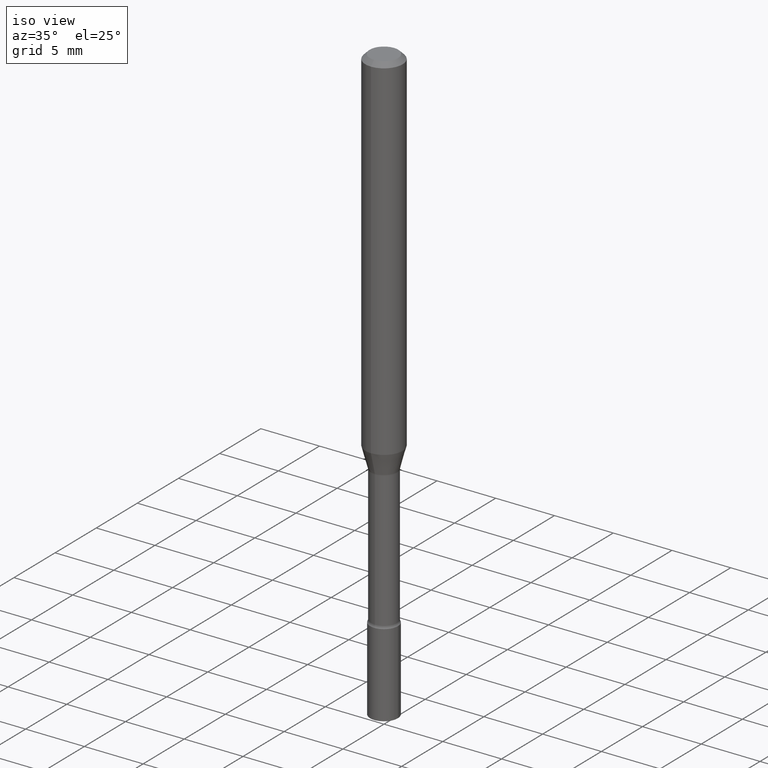
[diagram: clean part render]
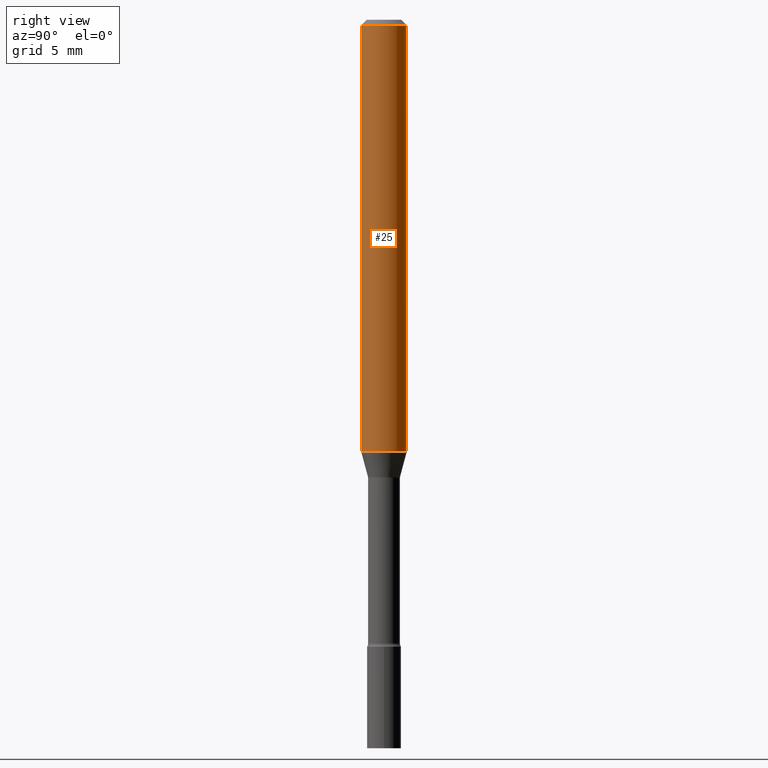
[diagram: tour spotlight — one face highlighted and labeled with its STEP entity id]
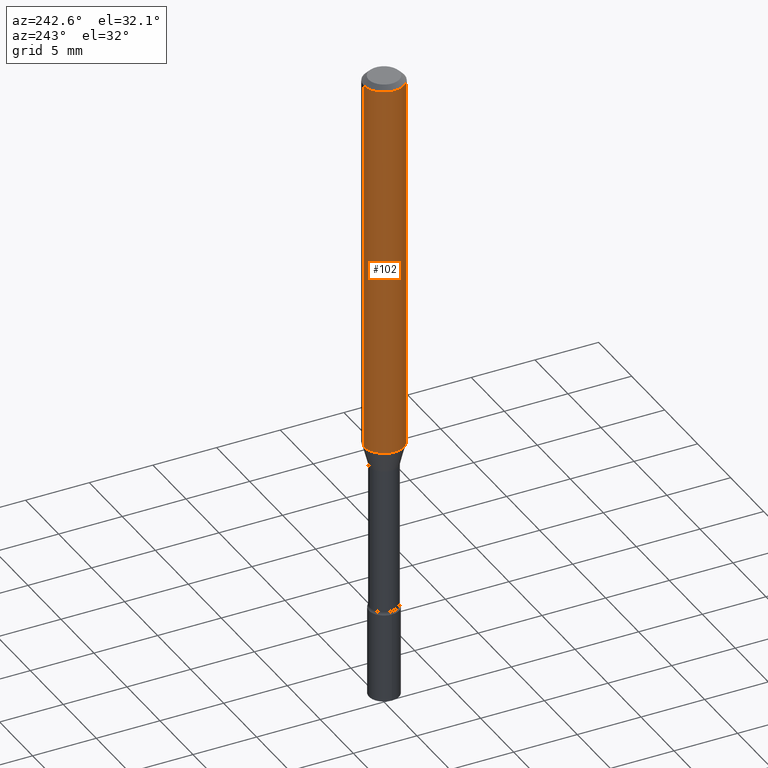
[diagram: tour spotlight — one face highlighted and labeled with its STEP entity id]
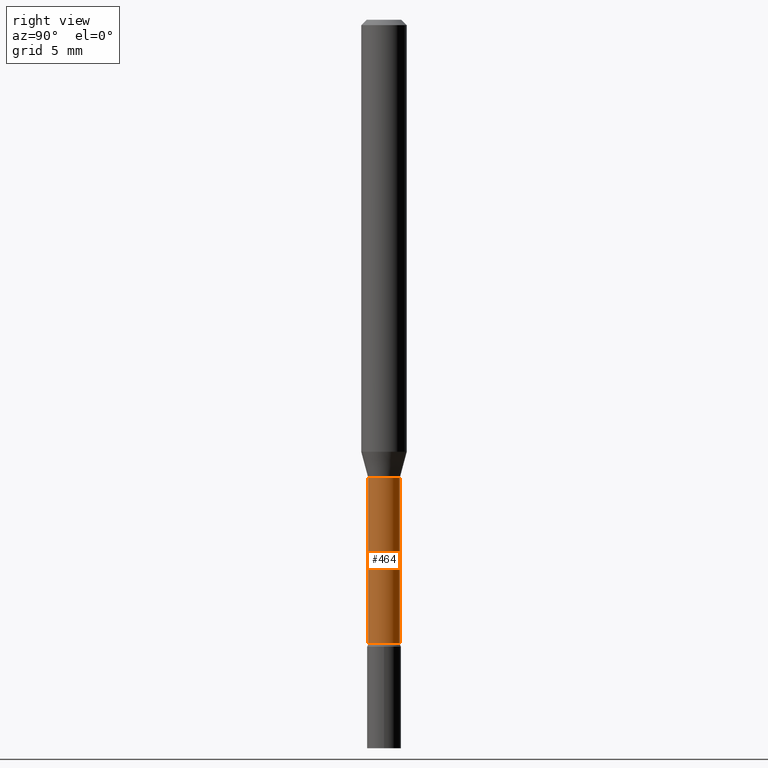
[diagram: tour spotlight — one face highlighted and labeled with its STEP entity id]
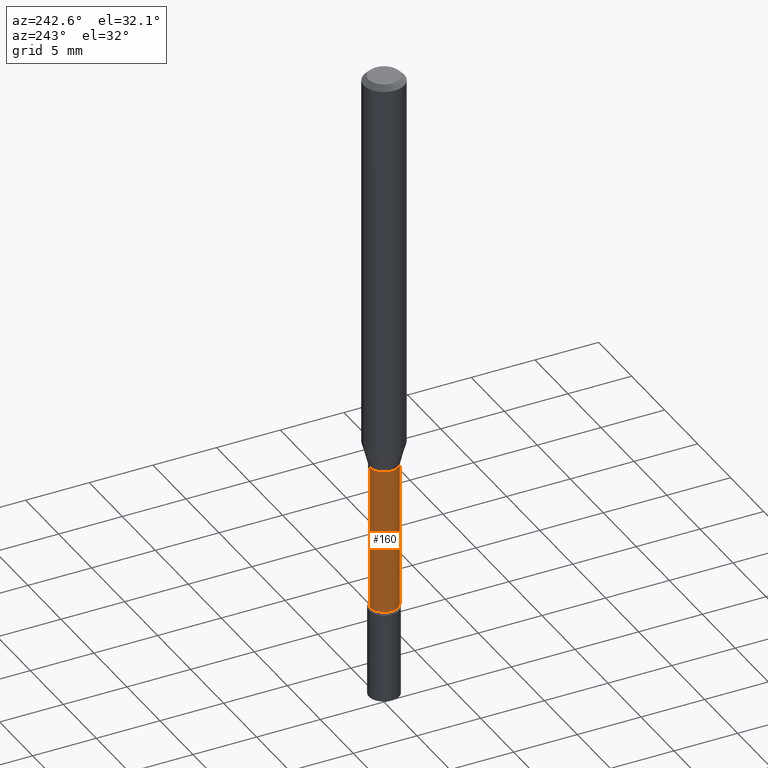
[diagram: tour spotlight — one face highlighted and labeled with its STEP entity id]
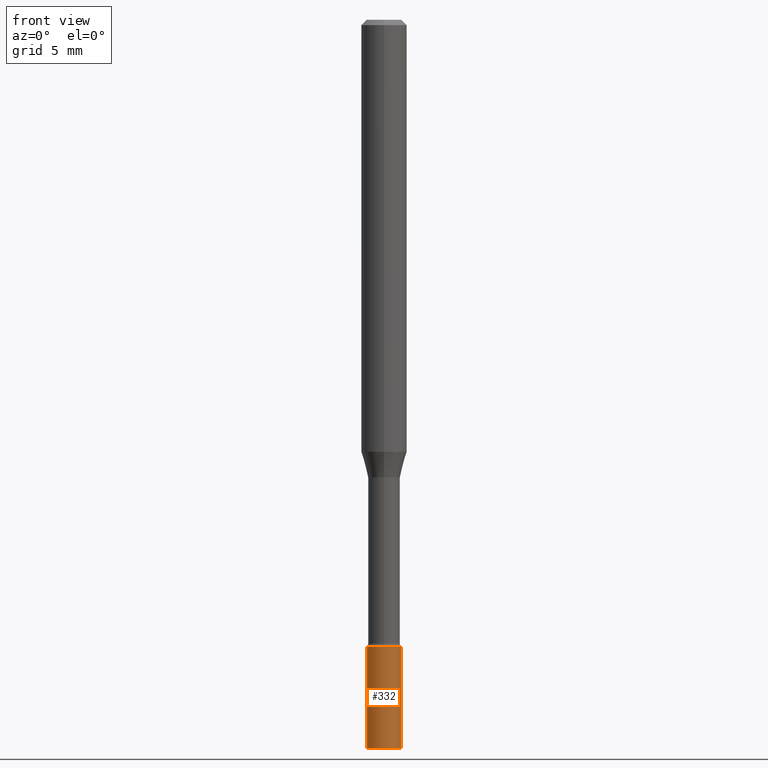
[diagram: tour spotlight — one face highlighted and labeled with its STEP entity id]
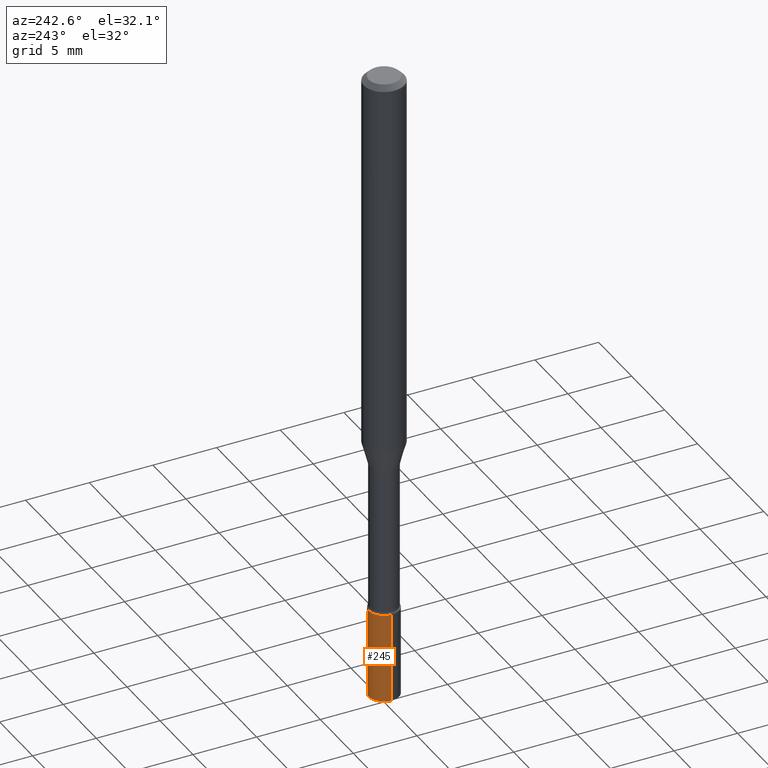
[diagram: tour spotlight — one face highlighted and labeled with its STEP entity id]
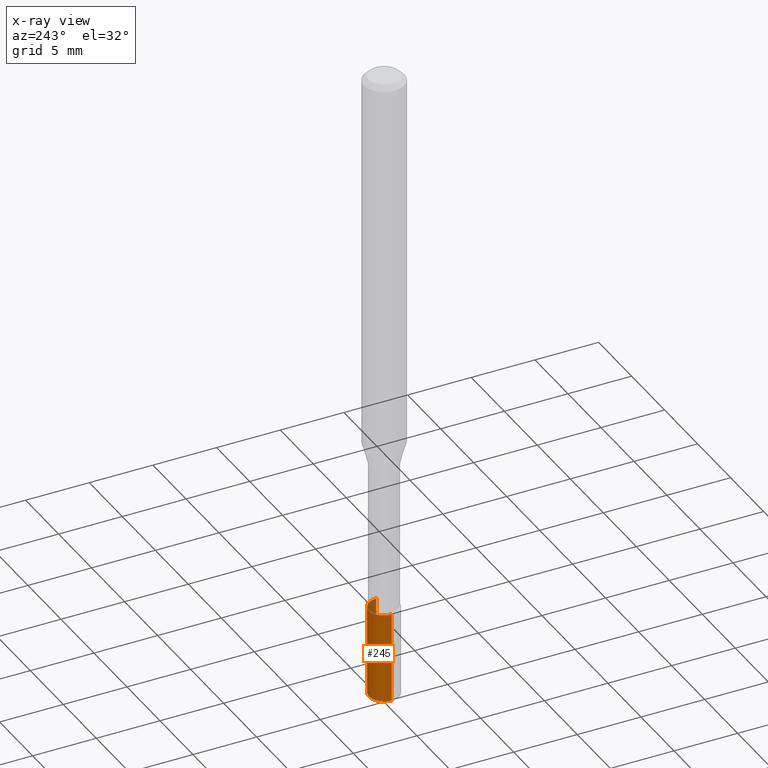
[diagram: x-ray of the same camera — body ghosted, this tour face saturated]
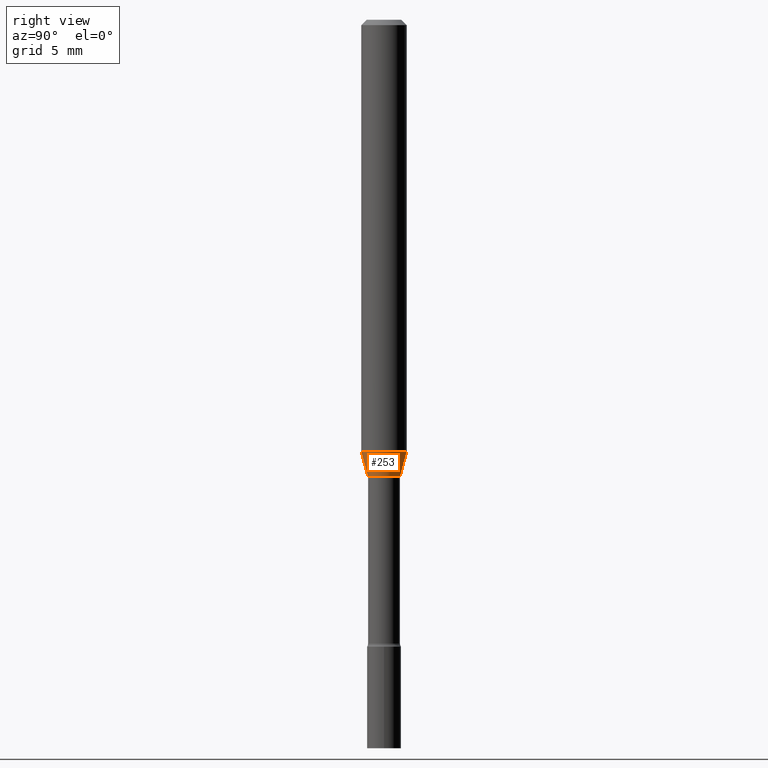
[diagram: tour spotlight — one face highlighted and labeled with its STEP entity id]
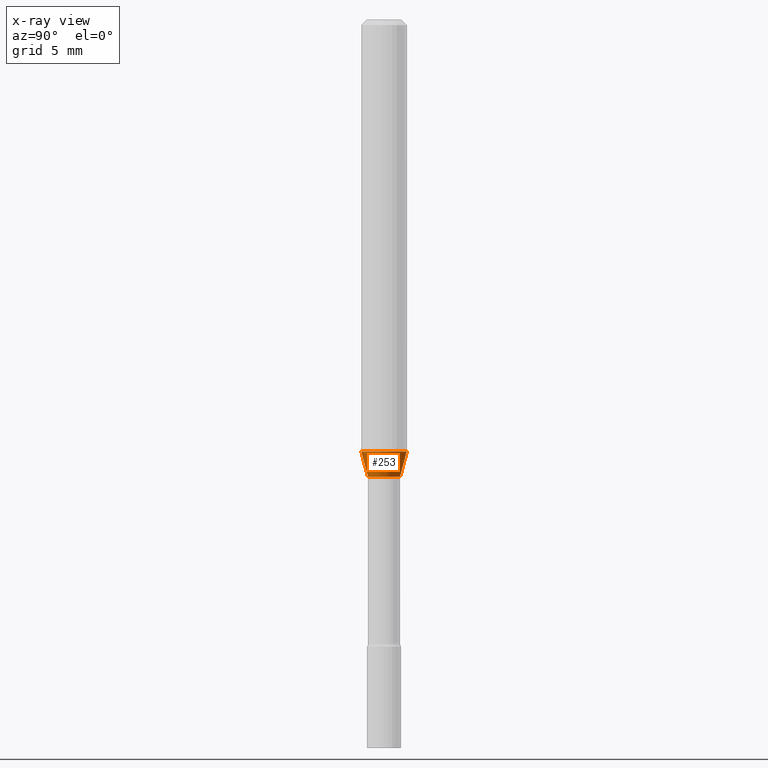
[diagram: x-ray of the same camera — body ghosted, this tour face saturated]
A machine part: a face-by-face anatomy tour. The part has 18 B-rep faces; the first image is the clean iso view, then the 7 largest visible faces are spotlighted one at a time (largest first), each with its STEP entity span.

Face 1 — right view, entity #25. In plain terms, the highlighted cylindrical surface (edge-blend (fillet) strip) has radius 1.5875 mm, axis along (-0, 0, 1).
Definition (entity closure, byte-faithful):
#1 = AXIS2_PLACEMENT_3D ( 'NONE', #285, #387, #252 ) ;
#7 = DIRECTION ( 'NONE',  ( -6.982962677686265922E-15, -1.000000000000000000, 4.370956789862821150E-15 ) ) ;
#15 = CARTESIAN_POINT ( 'NONE',  ( -4.364351673553916201E-16, -0.06250000000000000000, 2.182172476833613019E-16 ) ) ;
#23 = CIRCLE ( 'NONE', #165, 0.06250000000000000000 ) ;
#25 = ADVANCED_FACE ( 'NONE', ( #356 ), #214, .T. ) ;
#31 = EDGE_CURVE ( 'NONE', #70, #242, #167, .T. ) ;
#34 = CARTESIAN_POINT ( 'NONE',  ( 3.668208840243879843E-31, -5.237213944400681970E-17, -0.01500000000000003067 ) ) ;
#38 = ORIENTED_EDGE ( 'NONE', *, *, #239, .T. ) ;
#40 = CARTESIAN_POINT ( 'NONE',  ( -4.364351673553912750E-16, -0.06250000000000005551, -0.01499999999999981209 ) ) ;
#52 = EDGE_LOOP ( 'NONE', ( #418, #38, #116, #350 ) ) ;
#67 = CARTESIAN_POINT ( 'NONE',  ( -4.364351673553623336E-16, -0.06250000000000410783, -1.185837444817704922 ) ) ;
#70 = VERTEX_POINT ( 'NONE', #67 ) ;
#75 = DIRECTION ( 'NONE',  ( -2.445472560162581844E-29, 3.491475962933780831E-15, 1.000000000000000000 ) ) ;
#94 = AXIS2_PLACEMENT_3D ( 'NONE', #517, #161, #7 ) ;
#116 = ORIENTED_EDGE ( 'NONE', *, *, #235, .F. ) ;
#130 = DIRECTION ( 'NONE',  ( -2.445472560162581844E-29, 3.491475962933780831E-15, 1.000000000000000000 ) ) ;
#132 = CIRCLE ( 'NONE', #94, 0.06250000000000000000 ) ;
#150 = DIRECTION ( 'NONE',  ( -6.982962677686265922E-15, -1.000000000000000000, 3.483106191921935554E-15 ) ) ;
#161 = DIRECTION ( 'NONE',  ( -2.445472560162581844E-29, 3.491475962933780831E-15, 1.000000000000000000 ) ) ;
#165 = AXIS2_PLACEMENT_3D ( 'NONE', #34, #473, #150 ) ;
#167 = LINE ( 'NONE', #15, #320 ) ;
#207 = LINE ( 'NONE', #237, #343 ) ;
#214 = CYLINDRICAL_SURFACE ( 'NONE', #1, 0.06250000000000000000 ) ;
#219 = VERTEX_POINT ( 'NONE', #363 ) ;
#235 = EDGE_CURVE ( 'NONE', #242, #219, #23, .T. ) ;
#237 = CARTESIAN_POINT ( 'NONE',  ( 4.440892098500625669E-16, 0.06250000000000000000, -2.182172476833613019E-16 ) ) ;
#239 = EDGE_CURVE ( 'NONE', #380, #219, #207, .T. ) ;
#242 = VERTEX_POINT ( 'NONE', #40 ) ;
#252 = DIRECTION ( 'NONE',  ( -6.982962677686265922E-15, -1.000000000000000000, 3.491475962933780831E-15 ) ) ;
#285 = CARTESIAN_POINT ( 'NONE',  ( 0.000000000000000000, 0.000000000000000000, 0.000000000000000000 ) ) ;
#299 = EDGE_CURVE ( 'NONE', #70, #380, #132, .T. ) ;
#320 = VECTOR ( 'NONE', #130, 39.37007874015748143 ) ;
#343 = VECTOR ( 'NONE', #75, 39.37007874015748143 ) ;
#350 = ORIENTED_EDGE ( 'NONE', *, *, #31, .F. ) ;
#356 = FACE_OUTER_BOUND ( 'NONE', #52, .T. ) ;
#363 = CARTESIAN_POINT ( 'NONE',  ( 4.440892098500918040E-16, 0.06249999999999995837, -0.01500000000000024751 ) ) ;
#368 = CARTESIAN_POINT ( 'NONE',  ( 4.440892098500917054E-16, 0.06249999999999588524, -1.185837444817705588 ) ) ;
#380 = VERTEX_POINT ( 'NONE', #368 ) ;
#387 = DIRECTION ( 'NONE',  ( -2.445472560162581844E-29, 3.491475962933780831E-15, 1.000000000000000000 ) ) ;
#418 = ORIENTED_EDGE ( 'NONE', *, *, #299, .T. ) ;
#473 = DIRECTION ( 'NONE',  ( -2.445472560162581844E-29, 3.491475962933780831E-15, 1.000000000000000000 ) ) ;
#517 = CARTESIAN_POINT ( 'NONE',  ( 2.899932932115008172E-29, -4.140322934527831703E-15, -1.185837444817705144 ) ) ;

Face 2 — auxiliary view, entity #102. In plain terms, the highlighted cylindrical surface (edge-blend (fillet) strip) has radius 1.5875 mm, axis along (-0, 0, 1).
Definition (entity closure, byte-faithful):
#15 = CARTESIAN_POINT ( 'NONE',  ( -4.364351673553916201E-16, -0.06250000000000000000, 2.182172476833613019E-16 ) ) ;
#31 = EDGE_CURVE ( 'NONE', #70, #242, #167, .T. ) ;
#40 = CARTESIAN_POINT ( 'NONE',  ( -4.364351673553912750E-16, -0.06250000000000005551, -0.01499999999999981209 ) ) ;
#66 = EDGE_CURVE ( 'NONE', #380, #70, #449, .T. ) ;
#67 = CARTESIAN_POINT ( 'NONE',  ( -4.364351673553623336E-16, -0.06250000000000410783, -1.185837444817704922 ) ) ;
#70 = VERTEX_POINT ( 'NONE', #67 ) ;
#75 = DIRECTION ( 'NONE',  ( -2.445472560162581844E-29, 3.491475962933780831E-15, 1.000000000000000000 ) ) ;
#91 = DIRECTION ( 'NONE',  ( -6.982962677686265922E-15, -1.000000000000000000, 4.370956789862821150E-15 ) ) ;
#98 = FACE_OUTER_BOUND ( 'NONE', #220, .T. ) ;
#102 = ADVANCED_FACE ( 'NONE', ( #98 ), #109, .T. ) ;
#109 = CYLINDRICAL_SURFACE ( 'NONE', #415, 0.06250000000000000000 ) ;
#129 = AXIS2_PLACEMENT_3D ( 'NONE', #441, #208, #204 ) ;
#130 = DIRECTION ( 'NONE',  ( -2.445472560162581844E-29, 3.491475962933780831E-15, 1.000000000000000000 ) ) ;
#156 = AXIS2_PLACEMENT_3D ( 'NONE', #462, #419, #91 ) ;
#167 = LINE ( 'NONE', #15, #320 ) ;
#175 = CARTESIAN_POINT ( 'NONE',  ( 0.000000000000000000, 0.000000000000000000, 0.000000000000000000 ) ) ;
#188 = DIRECTION ( 'NONE',  ( -2.445472560162581844E-29, 3.491475962933780831E-15, 1.000000000000000000 ) ) ;
#204 = DIRECTION ( 'NONE',  ( -6.982962677686265922E-15, -1.000000000000000000, 3.483106191921935554E-15 ) ) ;
#207 = LINE ( 'NONE', #237, #343 ) ;
#208 = DIRECTION ( 'NONE',  ( -2.445472560162581844E-29, 3.491475962933780831E-15, 1.000000000000000000 ) ) ;
#219 = VERTEX_POINT ( 'NONE', #363 ) ;
#220 = EDGE_LOOP ( 'NONE', ( #381, #378, #223, #364 ) ) ;
#223 = ORIENTED_EDGE ( 'NONE', *, *, #31, .T. ) ;
#237 = CARTESIAN_POINT ( 'NONE',  ( 4.440892098500625669E-16, 0.06250000000000000000, -2.182172476833613019E-16 ) ) ;
#239 = EDGE_CURVE ( 'NONE', #380, #219, #207, .T. ) ;
#242 = VERTEX_POINT ( 'NONE', #40 ) ;
#291 = EDGE_CURVE ( 'NONE', #219, #242, #493, .T. ) ;
#320 = VECTOR ( 'NONE', #130, 39.37007874015748143 ) ;
#343 = VECTOR ( 'NONE', #75, 39.37007874015748143 ) ;
#352 = DIRECTION ( 'NONE',  ( -6.982962677686265922E-15, -1.000000000000000000, 3.491475962933780831E-15 ) ) ;
#363 = CARTESIAN_POINT ( 'NONE',  ( 4.440892098500918040E-16, 0.06249999999999995837, -0.01500000000000024751 ) ) ;
#364 = ORIENTED_EDGE ( 'NONE', *, *, #291, .F. ) ;
#368 = CARTESIAN_POINT ( 'NONE',  ( 4.440892098500917054E-16, 0.06249999999999588524, -1.185837444817705588 ) ) ;
#378 = ORIENTED_EDGE ( 'NONE', *, *, #66, .T. ) ;
#380 = VERTEX_POINT ( 'NONE', #368 ) ;
#381 = ORIENTED_EDGE ( 'NONE', *, *, #239, .F. ) ;
#415 = AXIS2_PLACEMENT_3D ( 'NONE', #175, #188, #352 ) ;
#419 = DIRECTION ( 'NONE',  ( -2.445472560162581844E-29, 3.491475962933780831E-15, 1.000000000000000000 ) ) ;
#441 = CARTESIAN_POINT ( 'NONE',  ( 3.668208840243879843E-31, -5.237213944400681970E-17, -0.01500000000000003067 ) ) ;
#449 = CIRCLE ( 'NONE', #156, 0.06250000000000000000 ) ;
#462 = CARTESIAN_POINT ( 'NONE',  ( 2.899932932115008172E-29, -4.140322934527831703E-15, -1.185837444817705144 ) ) ;
#493 = CIRCLE ( 'NONE', #129, 0.06250000000000000000 ) ;

Face 3 — right view, entity #464. In plain terms, the highlighted cylindrical surface (edge-blend (fillet) strip) has radius 1.11 mm, axis along (-0, 0, 1).
Definition (entity closure, byte-faithful):
#4 = DIRECTION ( 'NONE',  ( -2.445472560162581844E-29, 3.491475962933780831E-15, 1.000000000000000000 ) ) ;
#13 = EDGE_CURVE ( 'NONE', #276, #502, #428, .T. ) ;
#14 = VECTOR ( 'NONE', #4, 39.37007874015748143 ) ;
#27 = DIRECTION ( 'NONE',  ( -2.445472560162581844E-29, 3.491475962933780831E-15, 1.000000000000000000 ) ) ;
#32 = CIRCLE ( 'NONE', #50, 0.04370000000000003743 ) ;
#37 = LINE ( 'NONE', #443, #14 ) ;
#44 = AXIS2_PLACEMENT_3D ( 'NONE', #47, #488, #209 ) ;
#47 = CARTESIAN_POINT ( 'NONE',  ( 0.000000000000000000, 0.000000000000000000, 0.000000000000000000 ) ) ;
#50 = AXIS2_PLACEMENT_3D ( 'NONE', #436, #357, #158 ) ;
#51 = CARTESIAN_POINT ( 'NONE',  ( 3.204547738278472978E-16, 0.04369999999999405610, -1.712273030308291810 ) ) ;
#56 = CARTESIAN_POINT ( 'NONE',  ( 3.076342824119105309E-29, -4.392188732406627973E-15, -1.257974787463810973 ) ) ;
#61 = CARTESIAN_POINT ( 'NONE',  ( -3.051554690148591023E-16, -0.04370000000000438811, -1.257974787463810751 ) ) ;
#85 = FACE_OUTER_BOUND ( 'NONE', #234, .T. ) ;
#110 = ORIENTED_EDGE ( 'NONE', *, *, #13, .F. ) ;
#114 = EDGE_CURVE ( 'NONE', #502, #495, #391, .T. ) ;
#135 = ORIENTED_EDGE ( 'NONE', *, *, #199, .T. ) ;
#158 = DIRECTION ( 'NONE',  ( -6.982962677686264344E-15, -1.000000000000000000, 6.251368406554373050E-15 ) ) ;
#166 = EDGE_CURVE ( 'NONE', #276, #498, #32, .T. ) ;
#168 = CARTESIAN_POINT ( 'NONE',  ( 3.105071755272057582E-16, 0.04369999999999561041, -1.257974787463811195 ) ) ;
#199 = EDGE_CURVE ( 'NONE', #498, #495, #37, .T. ) ;
#209 = DIRECTION ( 'NONE',  ( -6.982962677686265133E-15, -1.000000000000000000, 3.491475962933781225E-15 ) ) ;
#216 = ORIENTED_EDGE ( 'NONE', *, *, #114, .F. ) ;
#227 = CARTESIAN_POINT ( 'NONE',  ( -3.051554690148899172E-16, -0.04370000000000001661, 1.525774995802063014E-16 ) ) ;
#234 = EDGE_LOOP ( 'NONE', ( #338, #135, #216, #110 ) ) ;
#276 = VERTEX_POINT ( 'NONE', #425 ) ;
#293 = AXIS2_PLACEMENT_3D ( 'NONE', #56, #467, #497 ) ;
#327 = CYLINDRICAL_SURFACE ( 'NONE', #44, 0.04370000000000001661 ) ;
#338 = ORIENTED_EDGE ( 'NONE', *, *, #166, .T. ) ;
#357 = DIRECTION ( 'NONE',  ( -2.445472560162581844E-29, 3.491475962933780831E-15, 1.000000000000000000 ) ) ;
#391 = CIRCLE ( 'NONE', #293, 0.04370000000000000273 ) ;
#425 = CARTESIAN_POINT ( 'NONE',  ( -3.051554690148482062E-16, -0.04370000000000601181, -1.712273030308291144 ) ) ;
#428 = LINE ( 'NONE', #227, #460 ) ;
#436 = CARTESIAN_POINT ( 'NONE',  ( 4.187316711125359446E-29, -5.978360127301184921E-15, -1.712273030308291366 ) ) ;
#443 = CARTESIAN_POINT ( 'NONE',  ( 3.105071755271638499E-16, 0.04370000000000001661, -1.525774995802063014E-16 ) ) ;
#460 = VECTOR ( 'NONE', #27, 39.37007874015748143 ) ;
#464 = ADVANCED_FACE ( 'NONE', ( #85 ), #327, .T. ) ;
#467 = DIRECTION ( 'NONE',  ( -2.445472560162581844E-29, 3.491475962933780831E-15, 1.000000000000000000 ) ) ;
#488 = DIRECTION ( 'NONE',  ( -2.445472560162581844E-29, 3.491475962933780831E-15, 1.000000000000000000 ) ) ;
#495 = VERTEX_POINT ( 'NONE', #168 ) ;
#497 = DIRECTION ( 'NONE',  ( -6.982962677686266711E-15, -1.000000000000000000, 6.251368406554377784E-15 ) ) ;
#498 = VERTEX_POINT ( 'NONE', #51 ) ;
#502 = VERTEX_POINT ( 'NONE', #61 ) ;

Face 4 — auxiliary view, entity #160. In plain terms, the highlighted cylindrical surface (edge-blend (fillet) strip) has radius 1.11 mm, axis along (-0, 0, 1).
Definition (entity closure, byte-faithful):
#4 = DIRECTION ( 'NONE',  ( -2.445472560162581844E-29, 3.491475962933780831E-15, 1.000000000000000000 ) ) ;
#13 = EDGE_CURVE ( 'NONE', #276, #502, #428, .T. ) ;
#14 = VECTOR ( 'NONE', #4, 39.37007874015748143 ) ;
#27 = DIRECTION ( 'NONE',  ( -2.445472560162581844E-29, 3.491475962933780831E-15, 1.000000000000000000 ) ) ;
#30 = ORIENTED_EDGE ( 'NONE', *, *, #144, .T. ) ;
#37 = LINE ( 'NONE', #443, #14 ) ;
#51 = CARTESIAN_POINT ( 'NONE',  ( 3.204547738278472978E-16, 0.04369999999999405610, -1.712273030308291810 ) ) ;
#61 = CARTESIAN_POINT ( 'NONE',  ( -3.051554690148591023E-16, -0.04370000000000438811, -1.257974787463810751 ) ) ;
#69 = FACE_OUTER_BOUND ( 'NONE', #280, .T. ) ;
#72 = DIRECTION ( 'NONE',  ( -2.445472560162581844E-29, 3.491475962933780831E-15, 1.000000000000000000 ) ) ;
#79 = DIRECTION ( 'NONE',  ( -2.445472560162581844E-29, 3.491475962933780831E-15, 1.000000000000000000 ) ) ;
#104 = CARTESIAN_POINT ( 'NONE',  ( 4.187316711125359446E-29, -5.978360127301184921E-15, -1.712273030308291366 ) ) ;
#144 = EDGE_CURVE ( 'NONE', #498, #276, #190, .T. ) ;
#146 = ORIENTED_EDGE ( 'NONE', *, *, #13, .T. ) ;
#160 = ADVANCED_FACE ( 'NONE', ( #69 ), #479, .T. ) ;
#168 = CARTESIAN_POINT ( 'NONE',  ( 3.105071755272057582E-16, 0.04369999999999561041, -1.257974787463811195 ) ) ;
#169 = AXIS2_PLACEMENT_3D ( 'NONE', #104, #345, #269 ) ;
#172 = ORIENTED_EDGE ( 'NONE', *, *, #199, .F. ) ;
#190 = CIRCLE ( 'NONE', #169, 0.04370000000000003743 ) ;
#192 = DIRECTION ( 'NONE',  ( -6.982962677686265133E-15, -1.000000000000000000, 3.491475962933781225E-15 ) ) ;
#199 = EDGE_CURVE ( 'NONE', #498, #495, #37, .T. ) ;
#227 = CARTESIAN_POINT ( 'NONE',  ( -3.051554690148899172E-16, -0.04370000000000001661, 1.525774995802063014E-16 ) ) ;
#233 = CARTESIAN_POINT ( 'NONE',  ( 0.000000000000000000, 0.000000000000000000, 0.000000000000000000 ) ) ;
#248 = AXIS2_PLACEMENT_3D ( 'NONE', #233, #79, #192 ) ;
#269 = DIRECTION ( 'NONE',  ( -6.982962677686264344E-15, -1.000000000000000000, 6.251368406554373050E-15 ) ) ;
#276 = VERTEX_POINT ( 'NONE', #425 ) ;
#280 = EDGE_LOOP ( 'NONE', ( #172, #30, #146, #458 ) ) ;
#326 = CARTESIAN_POINT ( 'NONE',  ( 3.076342824119105309E-29, -4.392188732406627973E-15, -1.257974787463810973 ) ) ;
#337 = EDGE_CURVE ( 'NONE', #495, #502, #392, .T. ) ;
#345 = DIRECTION ( 'NONE',  ( -2.445472560162581844E-29, 3.491475962933780831E-15, 1.000000000000000000 ) ) ;
#392 = CIRCLE ( 'NONE', #494, 0.04370000000000000273 ) ;
#425 = CARTESIAN_POINT ( 'NONE',  ( -3.051554690148482062E-16, -0.04370000000000601181, -1.712273030308291144 ) ) ;
#428 = LINE ( 'NONE', #227, #460 ) ;
#443 = CARTESIAN_POINT ( 'NONE',  ( 3.105071755271638499E-16, 0.04370000000000001661, -1.525774995802063014E-16 ) ) ;
#451 = DIRECTION ( 'NONE',  ( -6.982962677686266711E-15, -1.000000000000000000, 6.251368406554377784E-15 ) ) ;
#458 = ORIENTED_EDGE ( 'NONE', *, *, #337, .F. ) ;
#460 = VECTOR ( 'NONE', #27, 39.37007874015748143 ) ;
#479 = CYLINDRICAL_SURFACE ( 'NONE', #248, 0.04370000000000001661 ) ;
#494 = AXIS2_PLACEMENT_3D ( 'NONE', #326, #72, #451 ) ;
#495 = VERTEX_POINT ( 'NONE', #168 ) ;
#498 = VERTEX_POINT ( 'NONE', #51 ) ;
#502 = VERTEX_POINT ( 'NONE', #61 ) ;

Face 5 — front view, entity #332. In plain terms, the highlighted cylindrical surface (edge-blend (fillet) strip) has radius 1.1811 mm, axis along (-0, 0, 1).
Definition (entity closure, byte-faithful):
#5 = CARTESIAN_POINT ( 'NONE',  ( -0.04649999999999999967, 3.304023721284465841E-16, -2.287304816968531530E-30 ) ) ;
#21 = ORIENTED_EDGE ( 'NONE', *, *, #456, .F. ) ;
#42 = DIRECTION ( 'NONE',  ( -2.445468806185136877E-29, 3.491481338843145188E-15, 1.000000000000000000 ) ) ;
#59 = DIRECTION ( 'NONE',  ( 1.000000000000000000, -6.982962677686260400E-15, 0.000000000000000000 ) ) ;
#77 = EDGE_CURVE ( 'NONE', #187, #302, #489, .T. ) ;
#82 = LINE ( 'NONE', #5, #321 ) ;
#83 = CARTESIAN_POINT ( 'NONE',  ( -0.04649999999999999967, -6.165498658789225463E-15, -1.721000000000000085 ) ) ;
#97 = VERTEX_POINT ( 'NONE', #186 ) ;
#103 = DIRECTION ( 'NONE',  ( 1.000000000000000000, -6.982962677686260400E-15, 0.000000000000000000 ) ) ;
#113 = DIRECTION ( 'NONE',  ( -2.445468806185136597E-29, 3.491481338843145583E-15, 1.000000000000000000 ) ) ;
#137 = VERTEX_POINT ( 'NONE', #182 ) ;
#141 = CARTESIAN_POINT ( 'NONE',  ( 4.208651815444620572E-29, -6.008839384149054309E-15, -1.721000000000000085 ) ) ;
#155 = CARTESIAN_POINT ( 'NONE',  ( 0.000000000000000000, 0.000000000000000000, 0.000000000000000000 ) ) ;
#157 = AXIS2_PLACEMENT_3D ( 'NONE', #155, #113, #198 ) ;
#162 = FACE_OUTER_BOUND ( 'NONE', #513, .T. ) ;
#163 = CARTESIAN_POINT ( 'NONE',  ( 0.04649999999999999967, -6.333547148661465016E-15, -1.721000000000000085 ) ) ;
#174 = EDGE_CURVE ( 'NONE', #137, #302, #512, .T. ) ;
#182 = CARTESIAN_POINT ( 'NONE',  ( 0.04649999999999999967, -7.307670442198702662E-15, -2.000000000000000000 ) ) ;
#186 = CARTESIAN_POINT ( 'NONE',  ( -0.04649999999999999967, -6.165498658789225463E-15, -2.000000000000000000 ) ) ;
#187 = VERTEX_POINT ( 'NONE', #83 ) ;
#198 = DIRECTION ( 'NONE',  ( 1.000000000000000000, -6.982962677686267499E-15, 4.876176775795936353E-29 ) ) ;
#231 = ORIENTED_EDGE ( 'NONE', *, *, #174, .T. ) ;
#232 = CARTESIAN_POINT ( 'NONE',  ( 4.890937612370273194E-29, -6.982962677686291165E-15, -2.000000000000000000 ) ) ;
#246 = DIRECTION ( 'NONE',  ( -2.445468806185136877E-29, 3.491481338843145188E-15, 1.000000000000000000 ) ) ;
#268 = AXIS2_PLACEMENT_3D ( 'NONE', #232, #466, #103 ) ;
#271 = EDGE_CURVE ( 'NONE', #97, #137, #382, .T. ) ;
#273 = ORIENTED_EDGE ( 'NONE', *, *, #271, .T. ) ;
#279 = CARTESIAN_POINT ( 'NONE',  ( 0.04649999999999999967, -3.247077645124114474E-16, 2.267422200745110326E-30 ) ) ;
#302 = VERTEX_POINT ( 'NONE', #163 ) ;
#321 = VECTOR ( 'NONE', #42, 39.37007874015748143 ) ;
#332 = ADVANCED_FACE ( 'NONE', ( #162 ), #435, .T. ) ;
#333 = VECTOR ( 'NONE', #246, 39.37007874015748143 ) ;
#382 = CIRCLE ( 'NONE', #268, 0.04649999999999999967 ) ;
#384 = DIRECTION ( 'NONE',  ( -2.445468806185136597E-29, 3.491481338843145583E-15, 1.000000000000000000 ) ) ;
#395 = ORIENTED_EDGE ( 'NONE', *, *, #77, .F. ) ;
#435 = CYLINDRICAL_SURFACE ( 'NONE', #157, 0.04649999999999999967 ) ;
#456 = EDGE_CURVE ( 'NONE', #97, #187, #82, .T. ) ;
#466 = DIRECTION ( 'NONE',  ( -2.445468806185136597E-29, 3.491481338843145583E-15, 1.000000000000000000 ) ) ;
#489 = CIRCLE ( 'NONE', #492, 0.04649999999999999967 ) ;
#492 = AXIS2_PLACEMENT_3D ( 'NONE', #141, #384, #59 ) ;
#512 = LINE ( 'NONE', #279, #333 ) ;
#513 = EDGE_LOOP ( 'NONE', ( #21, #273, #231, #395 ) ) ;

Face 6 — auxiliary view, entity #245. An x-ray twin of the same camera follows (body ghosted, this face saturated) — the face is partly hidden behind the body. In plain terms, the highlighted cylindrical surface (edge-blend (fillet) strip) has radius 1.1811 mm, axis along (-0, 0, 1).
Definition (entity closure, byte-faithful):
#5 = CARTESIAN_POINT ( 'NONE',  ( -0.04649999999999999967, 3.304023721284465841E-16, -2.287304816968531530E-30 ) ) ;
#6 = EDGE_CURVE ( 'NONE', #137, #97, #373, .T. ) ;
#10 = AXIS2_PLACEMENT_3D ( 'NONE', #476, #195, #115 ) ;
#42 = DIRECTION ( 'NONE',  ( -2.445468806185136877E-29, 3.491481338843145188E-15, 1.000000000000000000 ) ) ;
#82 = LINE ( 'NONE', #5, #321 ) ;
#83 = CARTESIAN_POINT ( 'NONE',  ( -0.04649999999999999967, -6.165498658789225463E-15, -1.721000000000000085 ) ) ;
#97 = VERTEX_POINT ( 'NONE', #186 ) ;
#105 = DIRECTION ( 'NONE',  ( -2.445468806185136597E-29, 3.491481338843145583E-15, 1.000000000000000000 ) ) ;
#115 = DIRECTION ( 'NONE',  ( 1.000000000000000000, -6.982962677686260400E-15, 0.000000000000000000 ) ) ;
#137 = VERTEX_POINT ( 'NONE', #182 ) ;
#147 = AXIS2_PLACEMENT_3D ( 'NONE', #319, #105, #265 ) ;
#149 = ORIENTED_EDGE ( 'NONE', *, *, #6, .T. ) ;
#163 = CARTESIAN_POINT ( 'NONE',  ( 0.04649999999999999967, -6.333547148661465016E-15, -1.721000000000000085 ) ) ;
#174 = EDGE_CURVE ( 'NONE', #137, #302, #512, .T. ) ;
#182 = CARTESIAN_POINT ( 'NONE',  ( 0.04649999999999999967, -7.307670442198702662E-15, -2.000000000000000000 ) ) ;
#186 = CARTESIAN_POINT ( 'NONE',  ( -0.04649999999999999967, -6.165498658789225463E-15, -2.000000000000000000 ) ) ;
#187 = VERTEX_POINT ( 'NONE', #83 ) ;
#195 = DIRECTION ( 'NONE',  ( -2.445468806185136597E-29, 3.491481338843145583E-15, 1.000000000000000000 ) ) ;
#201 = EDGE_LOOP ( 'NONE', ( #149, #324, #474, #510 ) ) ;
#245 = ADVANCED_FACE ( 'NONE', ( #360 ), #367, .T. ) ;
#246 = DIRECTION ( 'NONE',  ( -2.445468806185136877E-29, 3.491481338843145188E-15, 1.000000000000000000 ) ) ;
#249 = CIRCLE ( 'NONE', #10, 0.04649999999999999967 ) ;
#251 = EDGE_CURVE ( 'NONE', #302, #187, #249, .T. ) ;
#265 = DIRECTION ( 'NONE',  ( 1.000000000000000000, -6.982962677686260400E-15, 0.000000000000000000 ) ) ;
#272 = DIRECTION ( 'NONE',  ( -2.445468806185136597E-29, 3.491481338843145583E-15, 1.000000000000000000 ) ) ;
#279 = CARTESIAN_POINT ( 'NONE',  ( 0.04649999999999999967, -3.247077645124114474E-16, 2.267422200745110326E-30 ) ) ;
#302 = VERTEX_POINT ( 'NONE', #163 ) ;
#315 = CARTESIAN_POINT ( 'NONE',  ( 0.000000000000000000, 0.000000000000000000, 0.000000000000000000 ) ) ;
#319 = CARTESIAN_POINT ( 'NONE',  ( 4.890937612370273194E-29, -6.982962677686291165E-15, -2.000000000000000000 ) ) ;
#321 = VECTOR ( 'NONE', #42, 39.37007874015748143 ) ;
#324 = ORIENTED_EDGE ( 'NONE', *, *, #456, .T. ) ;
#333 = VECTOR ( 'NONE', #246, 39.37007874015748143 ) ;
#360 = FACE_OUTER_BOUND ( 'NONE', #201, .T. ) ;
#367 = CYLINDRICAL_SURFACE ( 'NONE', #374, 0.04649999999999999967 ) ;
#373 = CIRCLE ( 'NONE', #147, 0.04649999999999999967 ) ;
#374 = AXIS2_PLACEMENT_3D ( 'NONE', #315, #272, #433 ) ;
#433 = DIRECTION ( 'NONE',  ( 1.000000000000000000, -6.982962677686267499E-15, 4.876176775795936353E-29 ) ) ;
#456 = EDGE_CURVE ( 'NONE', #97, #187, #82, .T. ) ;
#474 = ORIENTED_EDGE ( 'NONE', *, *, #251, .F. ) ;
#476 = CARTESIAN_POINT ( 'NONE',  ( 4.208651815444620572E-29, -6.008839384149054309E-15, -1.721000000000000085 ) ) ;
#510 = ORIENTED_EDGE ( 'NONE', *, *, #174, .F. ) ;
#512 = LINE ( 'NONE', #279, #333 ) ;

Face 7 — right view, entity #253. An x-ray twin of the same camera follows (body ghosted, this face saturated) — the face is partly hidden behind the body. In plain terms, the highlighted conical surface has half-angle 15 deg.
Definition (entity closure, byte-faithful):
#7 = DIRECTION ( 'NONE',  ( -6.982962677686265922E-15, -1.000000000000000000, 4.370956789862821150E-15 ) ) ;
#9 = LINE ( 'NONE', #212, #74 ) ;
#12 = DIRECTION ( 'NONE',  ( -1.807323732225330139E-15, -0.2588190451025181860, 0.9659258262890689783 ) ) ;
#18 = CARTESIAN_POINT ( 'NONE',  ( 3.066848801026419586E-29, -4.378633825285753837E-15, -1.254092501787273051 ) ) ;
#20 = DIRECTION ( 'NONE',  ( -6.982962677686266711E-15, -1.000000000000000000, 6.179098042681425901E-15 ) ) ;
#57 = ORIENTED_EDGE ( 'NONE', *, *, #128, .T. ) ;
#62 = EDGE_CURVE ( 'NONE', #385, #336, #118, .T. ) ;
#67 = CARTESIAN_POINT ( 'NONE',  ( -4.364351673553623336E-16, -0.06250000000000410783, -1.185837444817704922 ) ) ;
#70 = VERTEX_POINT ( 'NONE', #67 ) ;
#74 = VECTOR ( 'NONE', #12, 39.37007874015748143 ) ;
#94 = AXIS2_PLACEMENT_3D ( 'NONE', #517, #161, #7 ) ;
#112 = ORIENTED_EDGE ( 'NONE', *, *, #491, .F. ) ;
#118 = CIRCLE ( 'NONE', #481, 0.04421111260566396722 ) ;
#128 = EDGE_CURVE ( 'NONE', #336, #380, #222, .T. ) ;
#132 = CIRCLE ( 'NONE', #94, 0.06250000000000000000 ) ;
#151 = EDGE_LOOP ( 'NONE', ( #361, #57, #413, #112 ) ) ;
#153 = CARTESIAN_POINT ( 'NONE',  ( 3.066848801026419586E-29, -4.378633825285753837E-15, -1.254092501787273051 ) ) ;
#161 = DIRECTION ( 'NONE',  ( -2.445472560162581844E-29, 3.491475962933780831E-15, 1.000000000000000000 ) ) ;
#212 = CARTESIAN_POINT ( 'NONE',  ( -3.087245492643056422E-16, -0.04421111260566835260, -1.254092501787272829 ) ) ;
#222 = LINE ( 'NONE', #308, #287 ) ;
#253 = ADVANCED_FACE ( 'NONE', ( #394 ), #404, .T. ) ;
#275 = DIRECTION ( 'NONE',  ( -2.445472560162581844E-29, 3.491475962933780831E-15, 1.000000000000000000 ) ) ;
#278 = CARTESIAN_POINT ( 'NONE',  ( 3.791140294341927456E-16, 0.04421111260565958878, -1.254092501787273273 ) ) ;
#287 = VECTOR ( 'NONE', #310, 39.37007874015748143 ) ;
#294 = AXIS2_PLACEMENT_3D ( 'NONE', #153, #275, #519 ) ;
#299 = EDGE_CURVE ( 'NONE', #70, #380, #132, .T. ) ;
#308 = CARTESIAN_POINT ( 'NONE',  ( 3.141388490182939337E-16, 0.04421111260565958878, -1.254092501787273273 ) ) ;
#310 = DIRECTION ( 'NONE',  ( 1.839019923739600315E-15, 0.2588190451025249583, 0.9659258262890670910 ) ) ;
#336 = VERTEX_POINT ( 'NONE', #278 ) ;
#361 = ORIENTED_EDGE ( 'NONE', *, *, #62, .T. ) ;
#368 = CARTESIAN_POINT ( 'NONE',  ( 4.440892098500917054E-16, 0.06249999999999588524, -1.185837444817705588 ) ) ;
#380 = VERTEX_POINT ( 'NONE', #368 ) ;
#385 = VERTEX_POINT ( 'NONE', #407 ) ;
#394 = FACE_OUTER_BOUND ( 'NONE', #151, .T. ) ;
#404 = CONICAL_SURFACE ( 'NONE', #294, 0.04421111260566396722, 0.2617993877991502960 ) ;
#407 = CARTESIAN_POINT ( 'NONE',  ( -3.087245492643056422E-16, -0.04421111260566835260, -1.254092501787272829 ) ) ;
#413 = ORIENTED_EDGE ( 'NONE', *, *, #299, .F. ) ;
#427 = DIRECTION ( 'NONE',  ( -2.445472560162581844E-29, 3.491475962933780831E-15, 1.000000000000000000 ) ) ;
#481 = AXIS2_PLACEMENT_3D ( 'NONE', #18, #427, #20 ) ;
#491 = EDGE_CURVE ( 'NONE', #385, #70, #9, .T. ) ;
#517 = CARTESIAN_POINT ( 'NONE',  ( 2.899932932115008172E-29, -4.140322934527831703E-15, -1.185837444817705144 ) ) ;
#519 = DIRECTION ( 'NONE',  ( -6.982962677686266711E-15, -1.000000000000000000, 6.179098042681425901E-15 ) ) ;